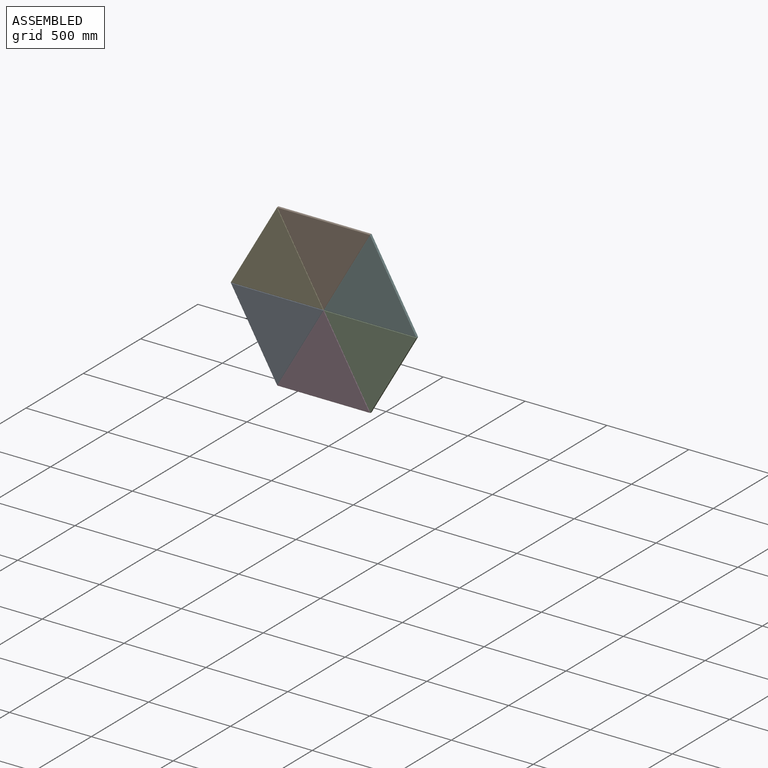
[diagram: assembled view]
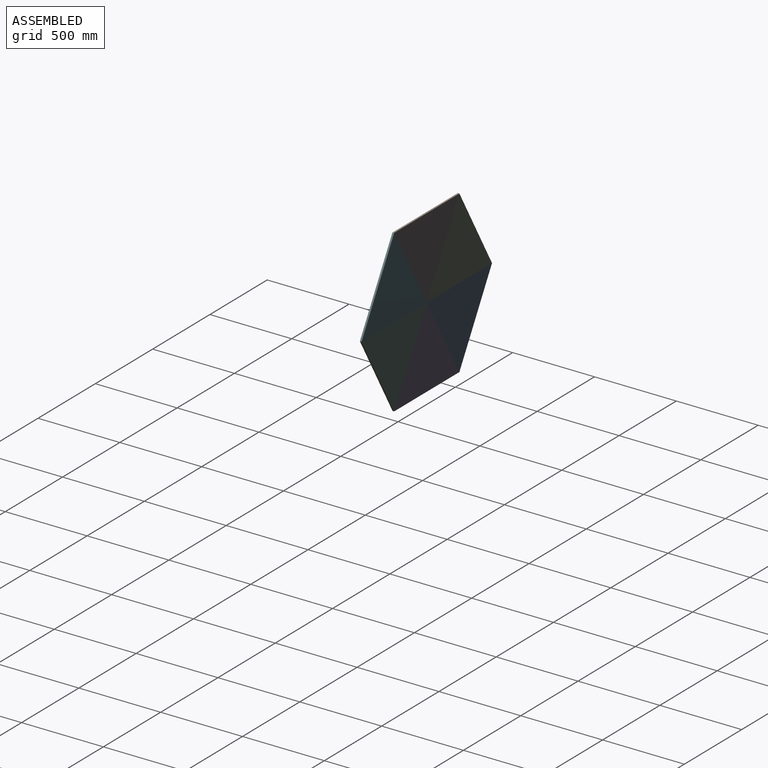
[diagram: assembled view, second angle]
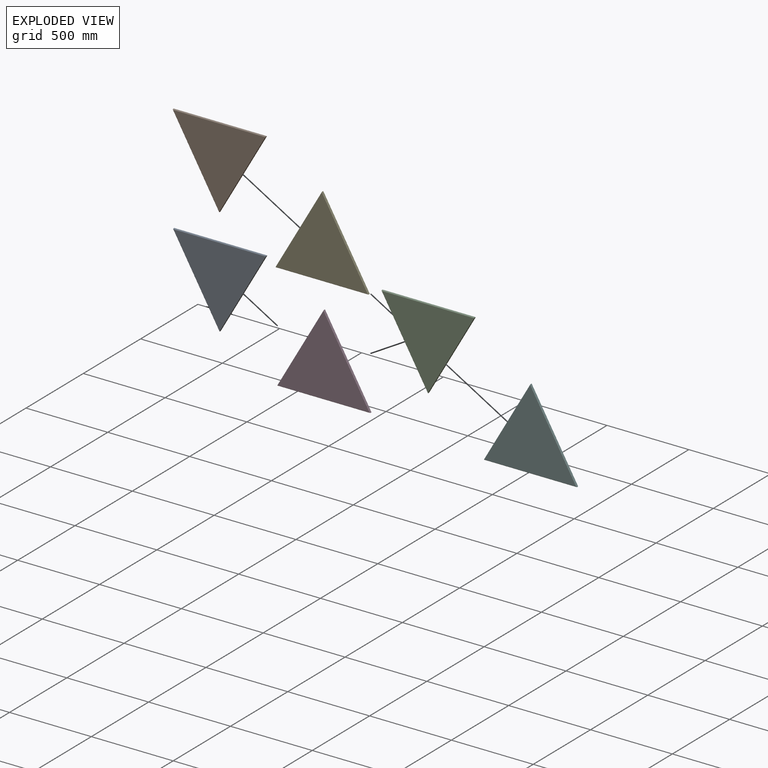
[diagram: exploded view]
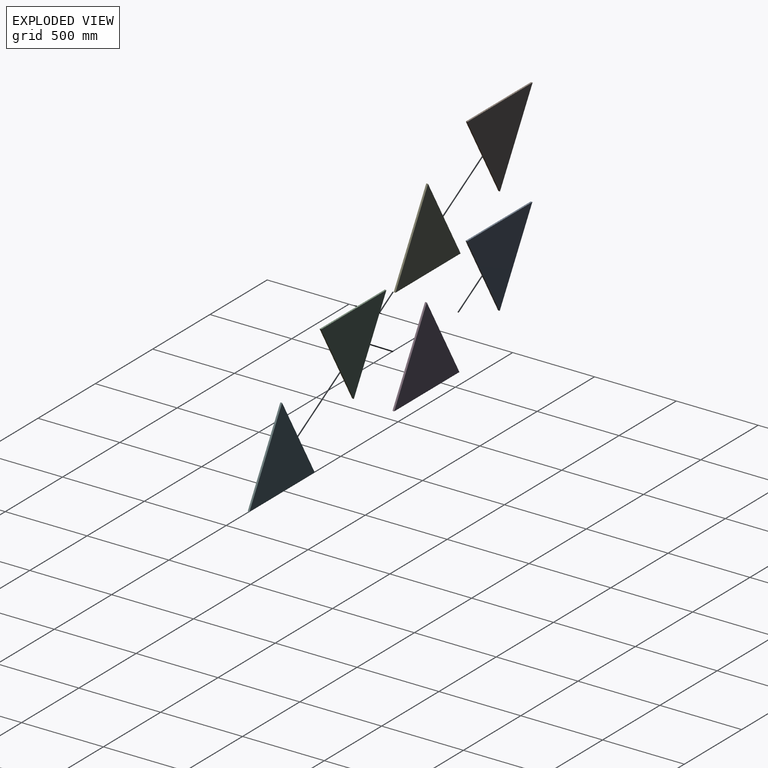
[diagram: exploded view, second angle]
ASSEMBLY  parts=6 mates=5
PART A: 8 faces, bbox 569.2x12x492.9 mm
  f0: plane 569.16x10mm, normal (0,0,1), area 5691.6mm2, adj f1,f2,f4,f6
  f1: plane 492.91x284.58mm, normal (-0.87,0,-0.5), area 5691.6mm2, adj f0,f2,f4,f7
  f2: plane 492.91x284.58mm, normal (0.87,0,-0.5), area 5691.6mm2, adj f0,f1,f4,f5
  f3: plane 562.23x486.91mm, normal (0,-1,0), area 136877.9mm2, adj f5,f6,f7
  f4: plane 569.16x492.91mm, normal (0,1,0), area 140272.1mm2, adj f0,f1,f2
  f5: plane 492.91x284.58mm, normal (0.61,-0.71,-0.35), area 1600mm2, adj f2,f3,f6,f7
  f6: plane 569.16x2mm, normal (0,-0.71,0.71), area 1600mm2, adj f0,f3,f5,f7
  f7: plane 492.91x284.58mm, normal (-0.61,-0.71,-0.35), area 1600mm2, adj f1,f3,f5,f6
PART B: same geometry as A
PART C: same geometry as A
PART D: same geometry as A
PART E: same geometry as A
PART F: same geometry as A
PLACE A t=(68.97,164.57,-496.22)mm
PLACE B t=(353.55,164.57,-3.31)mm
PLACE C rot(axis=(0,-1,0),120deg) t=(1337.26,164.57,511.54)mm
PLACE D rot(axis=(0,-1,0),60deg) t=(994.03,164.57,-358.47)mm
PLACE E rot(axis=(0,-1,0),60deg) t=(709.45,164.57,134.44)mm
PLACE F rot(axis=(0,1,0),60deg) t=(56.3,164.57,236.03)mm
MATE fastened D.f0 <-> A.f2  axis (-0.87,0,0.5) through (412.2,164.57,373.78)mm
MATE fastened B.f2 <-> F.f1  axis (0.87,0,-0.5) through (412.2,164.57,373.78)mm
MATE fastened C.f0 <-> D.f2  axis (-0.87,0,-0.5) through (412.2,164.57,373.78)mm
MATE fastened E.f2 <-> D.f2  axis (0.87,0,0.5) through (412.2,164.57,373.78)mm
MATE fastened F.f1 <-> A.f2  axis (-0.87,0,0.5) through (412.2,164.57,373.78)mm
